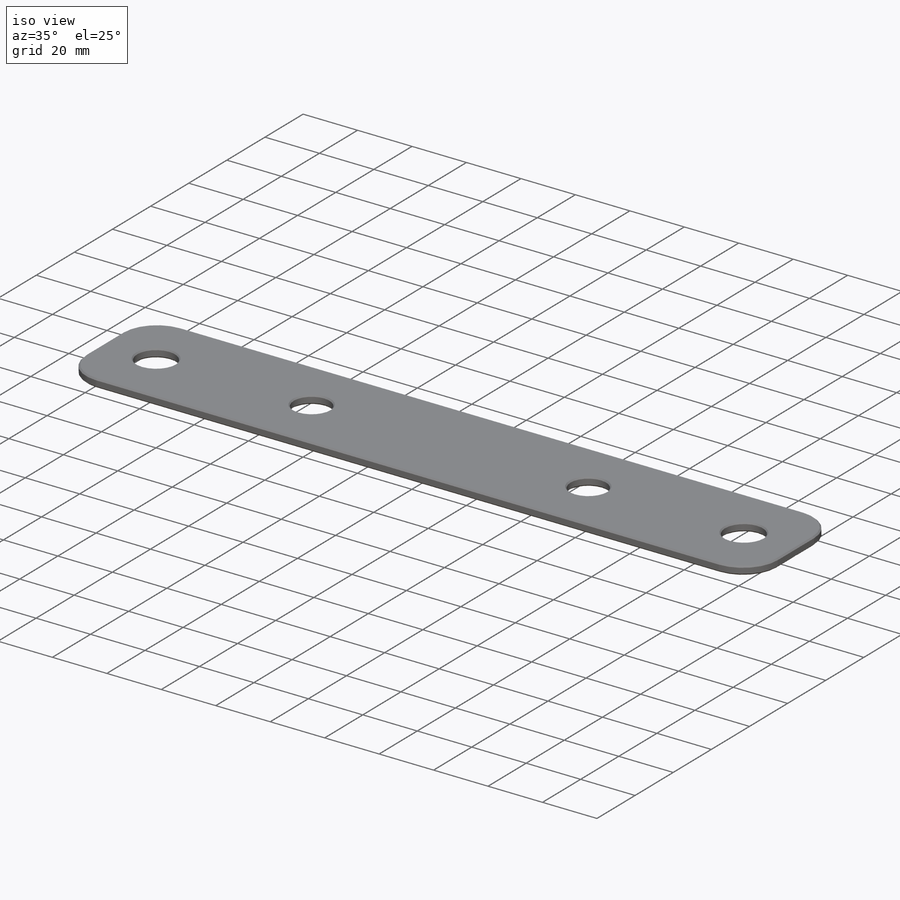
[diagram: iso view]
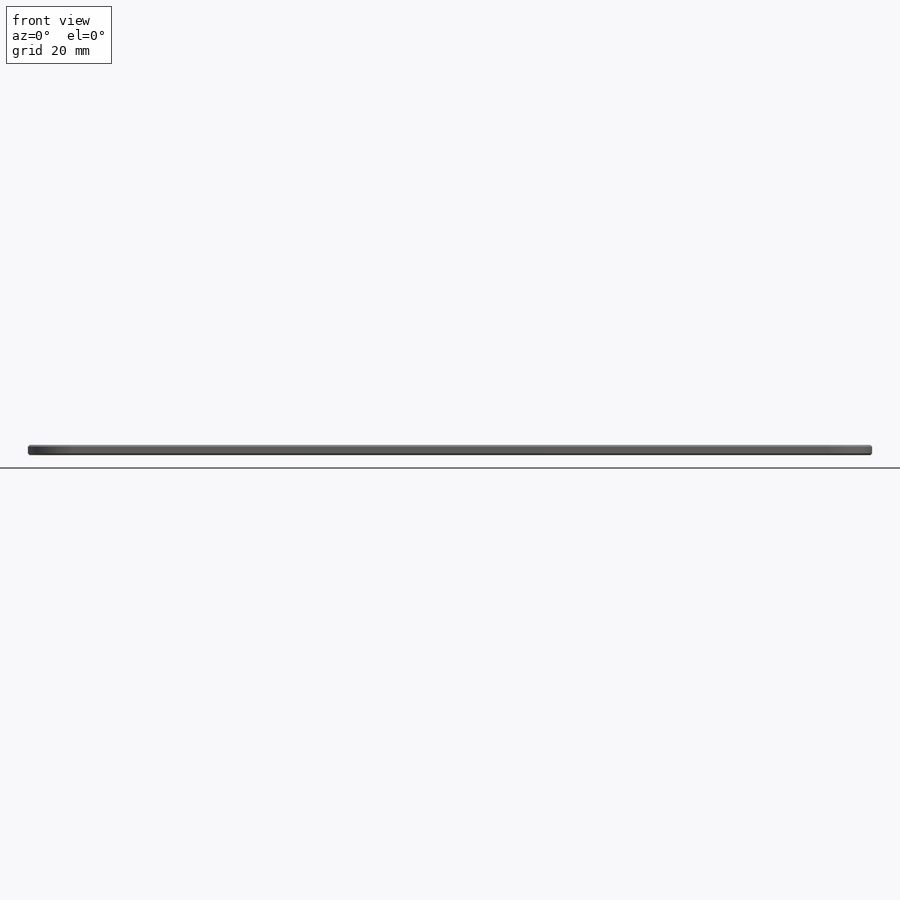
[diagram: front view]
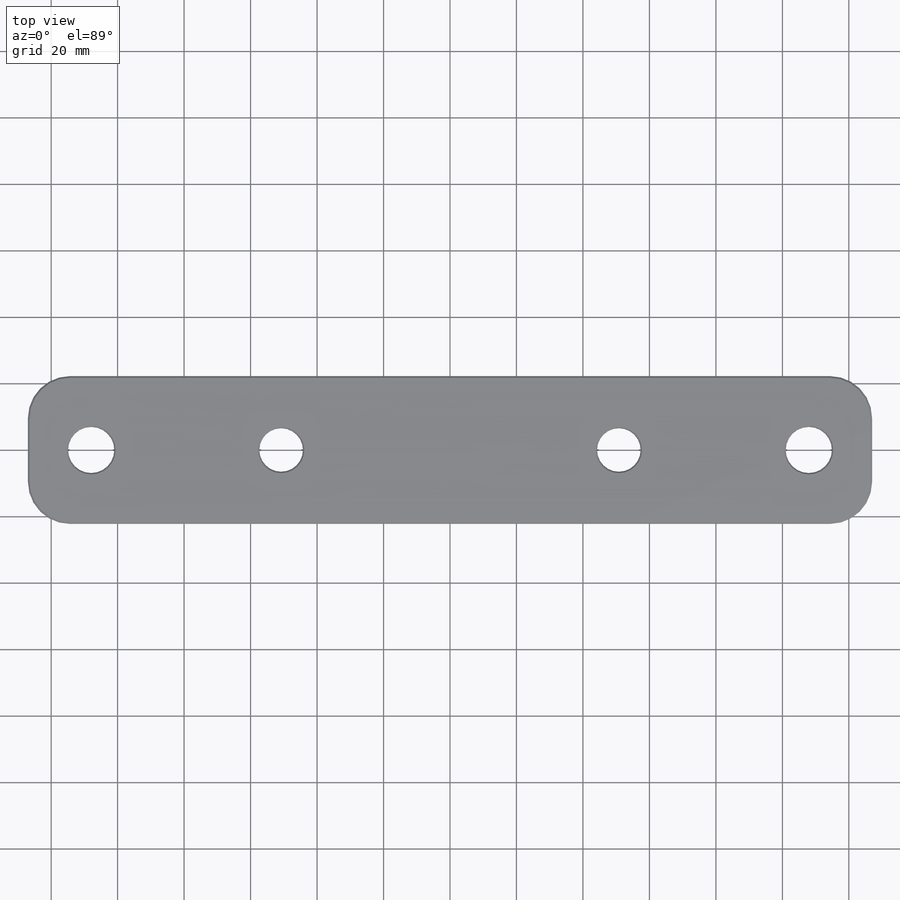
[diagram: top view]
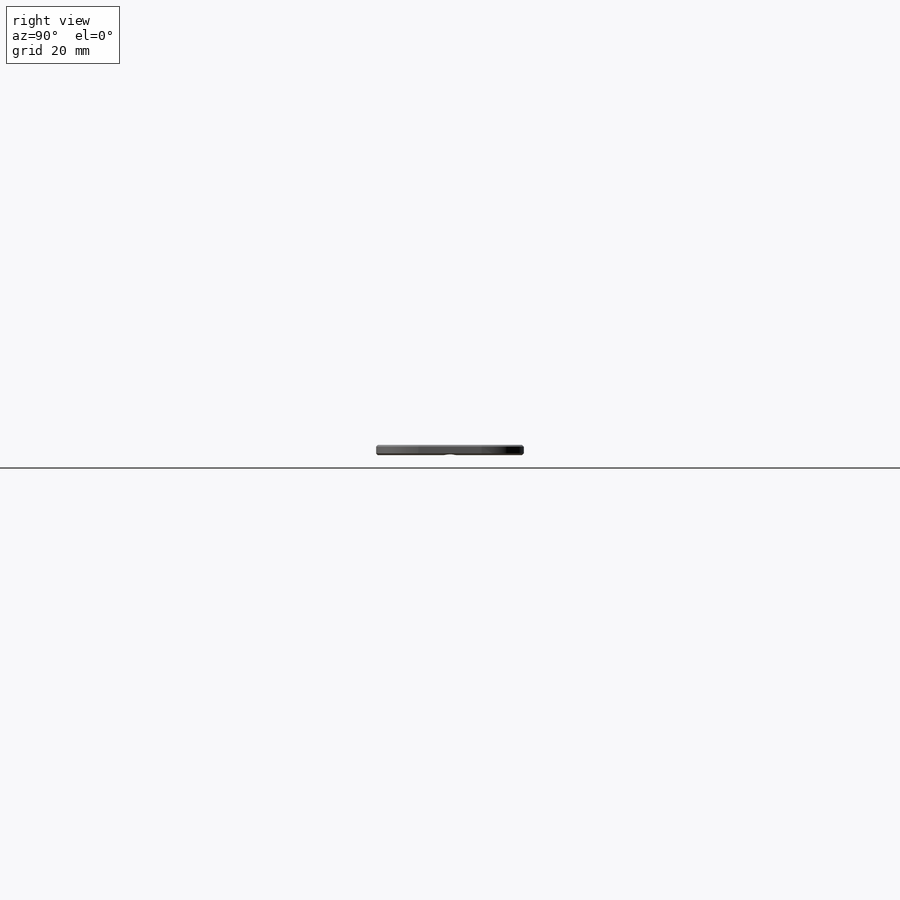
[diagram: right view]
SOLIDWORKS PART (.sldprt)
format: sldprt  version: not decoded by parser v0  size: 2,201,600 bytes
history: native  units: mm
features: sketch x11, hole x4, plane x3, cut_extrude x2, chamfer x2, material x1, extrude x1, fillet x1 (+15 scaffold rows collapsed; 1 parser-record rows omitted)
feature tree (41):
  scaffold x15  (default folders/planes/origin — collapsed)
  material  "304 SS"
  sketch  "Sketch1"  dims[D1=304.8mm D2=139.7mm]
  extrude  "Extrude1"  Depth=3.048mm
  hole  "1/2 Clearance Hole2"  Diameter=13.09624mm Depth=30.226mm
  sketch  "Sketch6"  dims[D1=101.6mm]
  sketch  "Sketch5"  dims[hole-wizard template sketch: 46 standard entries collapsed; hole parameters kept: c15.Thru Hole Dia.=~13.09624mm c15.Thru Hole Depth=30.226mm c15.Near C'Sink Dia.=13.97mm c15.D4=~3.666174mm c15.Near C'Sink Angle=82.0deg c15.Far C'Sink Dia.=19.05mm c15.D6=~9.919017mm c15.Far C'Sink Angle=82.0deg]
  hole  "1/2 Clearance Hole1"  Diameter=13.89126mm Depth=30.226mm
  sketch  "Sketch4"  dims[D1=215.9mm]
  sketch  "Sketch3"  dims[hole-wizard template sketch: 47 standard entries collapsed; hole parameters kept: c15.Thru Hole Depth=30.226mm c15.Near C'Sink Dia.=14.732mm c15.D4=~3.666174mm c15.Near C'Sink Angle=82.0deg c15.Far C'Sink Dia.=19.05mm c15.D6=~9.919017mm c15.Far C'Sink Angle=82.0deg]
  sketch  "Sketch8"  dims[D1=63.5mm]
  cut_extrude  "Extrude3"  Depth=1.016mm
  fillet  "Fillet1"  Radius=12.7mm
  chamfer  "Chamfer1"  Distance=0.508mm Angle=45deg
  sketch  "Sketch9"  dims[D1=6.35mm D2=0.254mm]
  cut_extrude  "Extrude4"  [1 undecoded]
  hole  "1/2 Clearance Hole4"  Diameter=13.09624mm Depth=3.048mm
  sketch  "Sketch11"  dims[D1=101.6mm]
  sketch  "Sketch10"  dims[hole-wizard template sketch: 46 standard entries collapsed; hole parameters kept: c15.Thru Hole Dia.=~13.09624mm c15.Thru Hole Depth=3.048mm c15.Near C'Sink Dia.=13.97mm c15.D4=~3.666174mm c15.Near C'Sink Angle=82.0deg c15.Far C'Sink Dia.=13.97mm c15.D6=~9.919017mm c15.Far C'Sink Angle=82.0deg]
  hole  "1/2 Clearance Hole5"  Diameter=13.89126mm Depth=3.048mm
  sketch  "Sketch13"  dims[D1=215.9mm]
  sketch  "Sketch12"  dims[hole-wizard template sketch: 47 standard entries collapsed; hole parameters kept: c15.Thru Hole Depth=3.048mm c15.Near C'Sink Dia.=14.732mm c15.D4=~3.666174mm c15.Near C'Sink Angle=82.0deg c15.Far C'Sink Dia.=14.732mm c15.D6=~9.919017mm c15.Far C'Sink Angle=82.0deg]
  chamfer  "Chamfer2"  Distance=0.508mm Angle=45deg
  parser-record x1  (decoder bookkeeping rows leaked as tree rows — omitted from the tree; the rows remain in map.json)
  plane  "AdvLIGO Front Plane"
  plane  "AdvLIGO Top Plane"
  plane  "AdvLIGO Right Plane"
decode coverage: 20 of 21 modeling features carry decoded parameters
note: ~ marks probable driven/reference dimensions
note: 1 parameter value undecoded
summary: Diameter pulled from absorbed wizard sketch
note: suppression state not decoded; provenance and decode notes live in map.json
